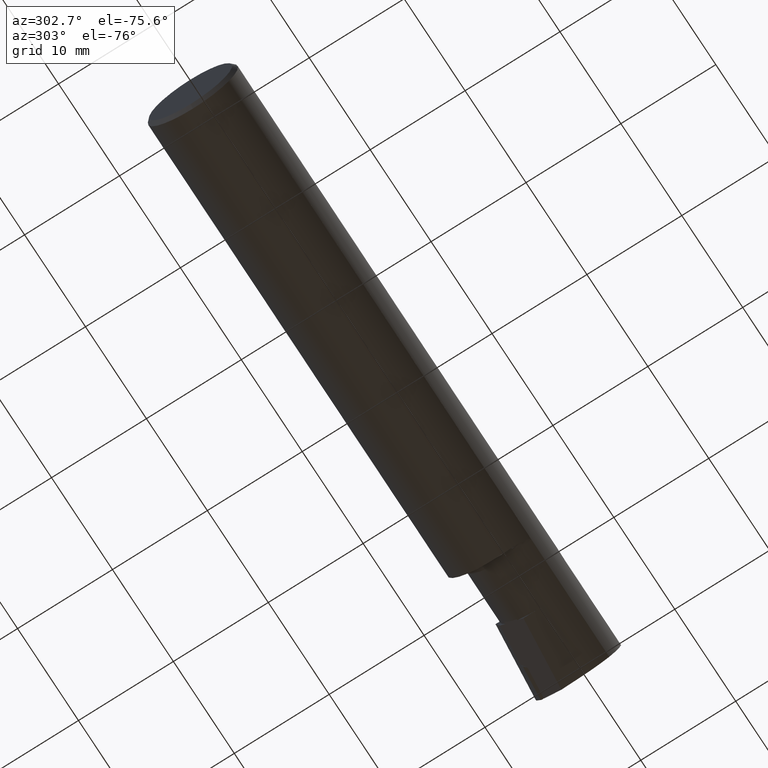
[diagram: clean part render]
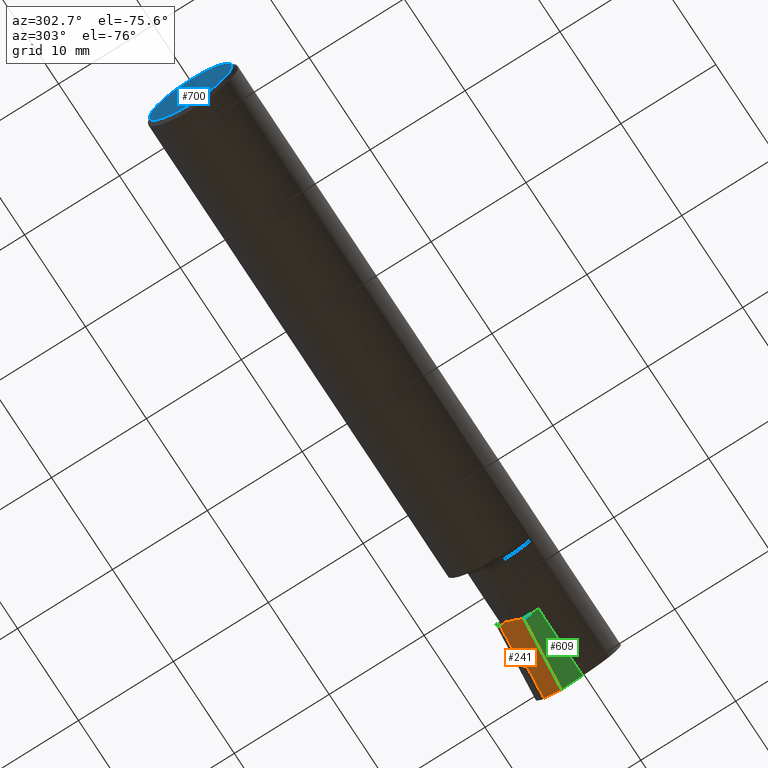
[diagram: same view with three faces highlighted in distinct colors, each labeled with its STEP entity id]
A machine part, auxiliary view with three faces highlighted in distinct colors.
Their STEP definitions:

[orange] entity #241 — the highlighted planar face has unit normal (0.0689, -0.716, 0.6947).
#9 = VECTOR ( 'NONE', #661, 39.37007874015748143 ) ;
#49 = CARTESIAN_POINT ( 'NONE',  ( 2.181492101905350367, 0.1027992905645485899, -0.07900000000000000078 ) ) ;
#51 = VERTEX_POINT ( 'NONE', #894 ) ;
#64 = VERTEX_POINT ( 'NONE', #1113 ) ;
#69 = VECTOR ( 'NONE', #915, 39.37007874015748854 ) ;
#79 = EDGE_CURVE ( 'NONE', #334, #429, #335, .T. ) ;
#81 = DIRECTION ( 'NONE',  ( 0.000000000000000000, 0.6963153109074987634, 0.7177360153954887023 ) ) ;
#87 = CARTESIAN_POINT ( 'NONE',  ( 2.464961778531886250, -0.04354375554968627909, -0.2579796886342063389 ) ) ;
#104 = CARTESIAN_POINT ( 'NONE',  ( 2.489993752604012567, 0.1325046208776947954, -0.07899999999999998690 ) ) ;
#110 = DIRECTION ( 'NONE',  ( 0.9953961983671780756, 0.09584575252023219694, -0.000000000000000000 ) ) ;
#112 =( BOUNDED_CURVE ( )  B_SPLINE_CURVE ( 3, ( #1071, #481, #981, #210 ),
 .UNSPECIFIED., .F., .T. ) 
 B_SPLINE_CURVE_WITH_KNOTS ( ( 4, 4 ),
 ( 2.906964023925625806, 2.922841759402729611 ),
 .UNSPECIFIED. ) 
 CURVE ( )  GEOMETRIC_REPRESENTATION_ITEM ( )  RATIONAL_B_SPLINE_CURVE ( ( 1.000000000000000000, 0.9999789915700160181, 0.9999789915700160181, 1.000000000000000000 ) ) 
 REPRESENTATION_ITEM ( '' )  );
#139 = ORIENTED_EDGE ( 'NONE', *, *, #452, .F. ) ;
#165 = CARTESIAN_POINT ( 'NONE',  ( 2.189999999999999947, 0.02503593865392249318, -0.1600000000000000033 ) ) ;
#210 = CARTESIAN_POINT ( 'NONE',  ( 2.189999999999999947, 0.09892832815658940404, -0.08383446352691081849 ) ) ;
#241 = ADVANCED_FACE ( 'NONE', ( #1040 ), #537, .F. ) ;
#249 = ORIENTED_EDGE ( 'NONE', *, *, #669, .F. ) ;
#251 = CARTESIAN_POINT ( 'NONE',  ( 2.458217987216988032, 0.02743201278301088744, -0.1841511679058638051 ) ) ;
#253 = EDGE_CURVE ( 'NONE', #896, #51, #939, .T. ) ;
#260 = DIRECTION ( 'NONE',  ( 0.000000000000000000, -0.6963153109074987634, -0.7177360153954887023 ) ) ;
#287 = CARTESIAN_POINT ( 'NONE',  ( 2.347923612504149826, 0.1377263874958503387, -0.05951696714321080134 ) ) ;
#290 = CARTESIAN_POINT ( 'NONE',  ( 2.181738322109779915, 0.1002421959724121570, -0.08166019597998362689 ) ) ;
#292 = EDGE_CURVE ( 'NONE', #51, #722, #950, .T. ) ;
#334 = VERTEX_POINT ( 'NONE', #104 ) ;
#335 = LINE ( 'NONE', #49, #629 ) ;
#377 = VECTOR ( 'NONE', #1125, 39.37007874015748143 ) ;
#382 = CARTESIAN_POINT ( 'NONE',  ( 2.186606679638320117, 0.04968236991043955414, -0.1342585810582415107 ) ) ;
#406 = ORIENTED_EDGE ( 'NONE', *, *, #79, .F. ) ;
#408 = CARTESIAN_POINT ( 'NONE',  ( 2.478665149256253919, 0.05283123112360996881, -0.1600000000000000033 ) ) ;
#419 = ORIENTED_EDGE ( 'NONE', *, *, #292, .T. ) ;
#424 = ORIENTED_EDGE ( 'NONE', *, *, #996, .T. ) ;
#429 = VERTEX_POINT ( 'NONE', #1166 ) ;
#452 = EDGE_CURVE ( 'NONE', #693, #64, #597, .T. ) ;
#469 = EDGE_CURVE ( 'NONE', #1212, #334, #646, .T. ) ;
#481 = CARTESIAN_POINT ( 'NONE',  ( 2.184586972752177836, 0.09980999843555199424, -0.08238842112660252348 ) ) ;
#487 = VECTOR ( 'NONE', #81, 39.37007874015748854 ) ;
#495 = EDGE_CURVE ( 'NONE', #693, #429, #927, .T. ) ;
#527 = VECTOR ( 'NONE', #110, 39.37007874015748143 ) ;
#537 = PLANE ( 'NONE',  #573 ) ;
#550 = CARTESIAN_POINT ( 'NONE',  ( 2.189999999999999947, 0.05057386360349683252, -0.1336764534577189190 ) ) ;
#553 = VECTOR ( 'NONE', #1174, 39.37007874015748854 ) ;
#558 = CARTESIAN_POINT ( 'NONE',  ( 2.201451034893686209, -0.1044821538151686213, -0.2946389782215263486 ) ) ;
#573 = AXIS2_PLACEMENT_3D ( 'NONE', #558, #834, #260 ) ;
#574 = CARTESIAN_POINT ( 'NONE',  ( 2.201451034893686209, -0.1044821538151686213, -0.2946389782215263486 ) ) ;
#597 = LINE ( 'NONE', #690, #610 ) ;
#610 = VECTOR ( 'NONE', #1079, 39.37007874015748143 ) ;
#629 = VECTOR ( 'NONE', #720, 39.37007874015748143 ) ;
#646 = LINE ( 'NONE', #87, #69 ) ;
#655 = LINE ( 'NONE', #574, #9 ) ;
#661 = DIRECTION ( 'NONE',  ( -0.06658005426111553160, 0.6914603011188269477, 0.7193398003386494155 ) ) ;
#663 = CARTESIAN_POINT ( 'NONE',  ( 2.186606679638320117, 0.04968236991043955414, -0.1342585810582415107 ) ) ;
#669 = EDGE_CURVE ( 'NONE', #896, #1212, #966, .T. ) ;
#681 = CARTESIAN_POINT ( 'NONE',  ( 2.187754451544411616, 0.04998017955827684794, -0.1340655276293346021 ) ) ;
#682 = EDGE_CURVE ( 'NONE', #985, #685, #112, .T. ) ;
#685 = VERTEX_POINT ( 'NONE', #1181 ) ;
#690 = CARTESIAN_POINT ( 'NONE',  ( 2.181868357711711948, 0.1217370850636853991, -0.05951696714321080134 ) ) ;
#693 = VERTEX_POINT ( 'NONE', #287 ) ;
#702 = ORIENTED_EDGE ( 'NONE', *, *, #719, .T. ) ;
#719 = EDGE_CURVE ( 'NONE', #685, #64, #1164, .T. ) ;
#720 = DIRECTION ( 'NONE',  ( -0.9953961983671780756, -0.09584575252023219694, 0.000000000000000000 ) ) ;
#722 = VERTEX_POINT ( 'NONE', #663 ) ;
#773 = CARTESIAN_POINT ( 'NONE',  ( 2.491200314294299112, 0.05403823023412254040, -0.1600000000000000033 ) ) ;
#777 = ORIENTED_EDGE ( 'NONE', *, *, #469, .F. ) ;
#783 = ORIENTED_EDGE ( 'NONE', *, *, #495, .T. ) ;
#834 = DIRECTION ( 'NONE',  ( 0.06894566448121144941, -0.7160281025912966779, 0.6946583704589989194 ) ) ;
#839 = ORIENTED_EDGE ( 'NONE', *, *, #682, .T. ) ;
#877 = CARTESIAN_POINT ( 'NONE',  ( 2.189999999999999947, 0.1523278978327161637, -0.02879216621877579360 ) ) ;
#894 = CARTESIAN_POINT ( 'NONE',  ( 2.189999999999999947, 0.05057386360349683252, -0.1336764534577189190 ) ) ;
#896 = VERTEX_POINT ( 'NONE', #165 ) ;
#915 = DIRECTION ( 'NONE',  ( 0.09921662170354424160, 0.6977845660589906407, 0.7094031021553272032 ) ) ;
#927 = LINE ( 'NONE', #251, #377 ) ;
#939 = LINE ( 'NONE', #1127, #487 ) ;
#950 =( BOUNDED_CURVE ( )  B_SPLINE_CURVE ( 3, ( #550, #982, #681, #382 ),
 .UNSPECIFIED., .F., .T. ) 
 B_SPLINE_CURVE_WITH_KNOTS ( ( 4, 4 ),
 ( 3.360343547776857953, 3.366998074347832492 ),
 .UNSPECIFIED. ) 
 CURVE ( )  GEOMETRIC_REPRESENTATION_ITEM ( )  RATIONAL_B_SPLINE_CURVE ( ( 1.000000000000000000, 0.9999963097764139608, 0.9999963097764139608, 1.000000000000000000 ) ) 
 REPRESENTATION_ITEM ( '' )  );
#963 = EDGE_LOOP ( 'NONE', ( #139, #783, #406, #777, #249, #980, #419, #424, #839, #702 ) ) ;
#966 = LINE ( 'NONE', #773, #527 ) ;
#980 = ORIENTED_EDGE ( 'NONE', *, *, #253, .T. ) ;
#981 = CARTESIAN_POINT ( 'NONE',  ( 2.187340923238427770, 0.09937203329598440216, -0.08311319220188072288 ) ) ;
#982 = CARTESIAN_POINT ( 'NONE',  ( 2.188885562505690441, 0.05027734521923696992, -0.1338714843797640663 ) ) ;
#985 = VERTEX_POINT ( 'NONE', #290 ) ;
#996 = EDGE_CURVE ( 'NONE', #722, #985, #655, .T. ) ;
#1040 = FACE_OUTER_BOUND ( 'NONE', #963, .T. ) ;
#1071 = CARTESIAN_POINT ( 'NONE',  ( 2.181738322109779915, 0.1002421959724121570, -0.08166019597998362689 ) ) ;
#1079 = DIRECTION ( 'NONE',  ( -0.9953961983671780756, -0.09584575252023197489, 2.447603062721989417E-16 ) ) ;
#1113 = CARTESIAN_POINT ( 'NONE',  ( 2.189999999999999947, 0.1225200731599075943, -0.05951696714321078746 ) ) ;
#1125 = DIRECTION ( 'NONE',  ( 0.5524160538717103330, -0.5524160538717157731, -0.6242379408924206841 ) ) ;
#1127 = CARTESIAN_POINT ( 'NONE',  ( 2.189999999999999947, 0.1523278978327161637, -0.02879216621877579360 ) ) ;
#1164 = LINE ( 'NONE', #877, #553 ) ;
#1166 = CARTESIAN_POINT ( 'NONE',  ( 2.365165019062702711, 0.1204849809372969260, -0.07900000000000000078 ) ) ;
#1174 = DIRECTION ( 'NONE',  ( 0.000000000000000000, 0.6963153109074987634, 0.7177360153954887023 ) ) ;
#1181 = CARTESIAN_POINT ( 'NONE',  ( 2.189999999999999947, 0.09892832815658940404, -0.08383446352691081849 ) ) ;
#1212 = VERTEX_POINT ( 'NONE', #408 ) ;

[blue] entity #700 — the highlighted planar face has unit normal (1, 0, 0).
#2 = CARTESIAN_POINT ( 'NONE',  ( 0.000000000000000000, 0.000000000000000000, 0.000000000000000000 ) ) ;
#65 = CARTESIAN_POINT ( 'NONE',  ( 0.000000000000000000, 0.000000000000000000, 0.000000000000000000 ) ) ;
#93 = EDGE_CURVE ( 'NONE', #943, #99, #871, .T. ) ;
#94 = FACE_OUTER_BOUND ( 'NONE', #513, .T. ) ;
#99 = VERTEX_POINT ( 'NONE', #626 ) ;
#183 = DIRECTION ( 'NONE',  ( 0.000000000000000000, 0.000000000000000000, -1.000000000000000000 ) ) ;
#217 = DIRECTION ( 'NONE',  ( 1.000000000000000000, 0.000000000000000000, 0.000000000000000000 ) ) ;
#229 = EDGE_CURVE ( 'NONE', #99, #943, #410, .T. ) ;
#242 = CARTESIAN_POINT ( 'NONE',  ( 0.000000000000000000, 0.000000000000000000, 0.000000000000000000 ) ) ;
#248 = ORIENTED_EDGE ( 'NONE', *, *, #93, .T. ) ;
#410 = CIRCLE ( 'NONE', #1205, 0.1723500000000004195 ) ;
#473 = AXIS2_PLACEMENT_3D ( 'NONE', #2, #217, #484 ) ;
#484 = DIRECTION ( 'NONE',  ( 0.000000000000000000, 0.000000000000000000, -1.000000000000000000 ) ) ;
#511 = DIRECTION ( 'NONE',  ( 0.000000000000000000, 0.000000000000000000, -1.000000000000000000 ) ) ;
#513 = EDGE_LOOP ( 'NONE', ( #1017, #248 ) ) ;
#626 = CARTESIAN_POINT ( 'NONE',  ( 0.000000000000000000, 0.000000000000000000, -0.1723500000000004195 ) ) ;
#652 = DIRECTION ( 'NONE',  ( -1.000000000000000000, -0.000000000000000000, -0.000000000000000000 ) ) ;
#672 = AXIS2_PLACEMENT_3D ( 'NONE', #242, #1008, #511 ) ;
#700 = ADVANCED_FACE ( 'NONE', ( #94 ), #1155, .F. ) ;
#871 = CIRCLE ( 'NONE', #672, 0.1723500000000004195 ) ;
#943 = VERTEX_POINT ( 'NONE', #1020 ) ;
#1008 = DIRECTION ( 'NONE',  ( -1.000000000000000000, -0.000000000000000000, -0.000000000000000000 ) ) ;
#1017 = ORIENTED_EDGE ( 'NONE', *, *, #229, .T. ) ;
#1020 = CARTESIAN_POINT ( 'NONE',  ( 0.000000000000000000, 2.202527268266516892E-17, 0.1723500000000004195 ) ) ;
#1155 = PLANE ( 'NONE',  #473 ) ;
#1205 = AXIS2_PLACEMENT_3D ( 'NONE', #65, #652, #183 ) ;

[green] entity #609 — the highlighted planar face has unit normal (0, 0, 1).
#15 = EDGE_LOOP ( 'NONE', ( #123, #715, #41, #971 ) ) ;
#29 = AXIS2_PLACEMENT_3D ( 'NONE', #359, #1027, #548 ) ;
#41 = ORIENTED_EDGE ( 'NONE', *, *, #1110, .F. ) ;
#110 = DIRECTION ( 'NONE',  ( 0.9953961983671780756, 0.09584575252023219694, -0.000000000000000000 ) ) ;
#123 = ORIENTED_EDGE ( 'NONE', *, *, #539, .T. ) ;
#165 = CARTESIAN_POINT ( 'NONE',  ( 2.189999999999999947, 0.02503593865392249318, -0.1600000000000000033 ) ) ;
#185 = CARTESIAN_POINT ( 'NONE',  ( 2.481746091699616130, 0.1697313636084475386, -0.1600000000000000033 ) ) ;
#282 = DIRECTION ( 'NONE',  ( 0.000000000000000000, 1.000000000000000000, 0.000000000000000000 ) ) ;
#355 = VECTOR ( 'NONE', #583, 39.37007874015748143 ) ;
#359 = CARTESIAN_POINT ( 'NONE',  ( 2.500000000000001332, -0.03734999999999999432, -0.1600000000000000033 ) ) ;
#408 = CARTESIAN_POINT ( 'NONE',  ( 2.478665149256253919, 0.05283123112360996881, -0.1600000000000000033 ) ) ;
#443 = PLANE ( 'NONE',  #29 ) ;
#466 = CARTESIAN_POINT ( 'NONE',  ( 2.476288392475423983, -0.03734999999999997350, -0.1600000000000000033 ) ) ;
#471 = DIRECTION ( 'NONE',  ( 0.02634618898897572378, 0.9996528789163552364, -0.000000000000000000 ) ) ;
#527 = VECTOR ( 'NONE', #110, 39.37007874015748143 ) ;
#539 = EDGE_CURVE ( 'NONE', #1077, #896, #1249, .T. ) ;
#548 = DIRECTION ( 'NONE',  ( 1.000000000000000000, 0.000000000000000000, -0.000000000000000000 ) ) ;
#561 = CARTESIAN_POINT ( 'NONE',  ( 2.189999999999999947, -0.03734999999999997350, -0.1600000000000000033 ) ) ;
#583 = DIRECTION ( 'NONE',  ( -1.000000000000000000, -0.000000000000000000, -0.000000000000000000 ) ) ;
#598 = VERTEX_POINT ( 'NONE', #466 ) ;
#609 = ADVANCED_FACE ( 'NONE', ( #844 ), #443, .F. ) ;
#639 = CARTESIAN_POINT ( 'NONE',  ( 2.189999999999999947, -0.03734999999999999432, -0.1600000000000000033 ) ) ;
#645 = EDGE_CURVE ( 'NONE', #598, #1077, #680, .T. ) ;
#669 = EDGE_CURVE ( 'NONE', #896, #1212, #966, .T. ) ;
#680 = LINE ( 'NONE', #1078, #355 ) ;
#715 = ORIENTED_EDGE ( 'NONE', *, *, #669, .T. ) ;
#773 = CARTESIAN_POINT ( 'NONE',  ( 2.491200314294299112, 0.05403823023412254040, -0.1600000000000000033 ) ) ;
#844 = FACE_OUTER_BOUND ( 'NONE', #15, .T. ) ;
#896 = VERTEX_POINT ( 'NONE', #165 ) ;
#966 = LINE ( 'NONE', #773, #527 ) ;
#971 = ORIENTED_EDGE ( 'NONE', *, *, #645, .T. ) ;
#1027 = DIRECTION ( 'NONE',  ( 0.000000000000000000, 0.000000000000000000, 1.000000000000000000 ) ) ;
#1047 = LINE ( 'NONE', #185, #1167 ) ;
#1077 = VERTEX_POINT ( 'NONE', #561 ) ;
#1078 = CARTESIAN_POINT ( 'NONE',  ( 2.500000000000001332, -0.03734999999999997350, -0.1600000000000000033 ) ) ;
#1102 = VECTOR ( 'NONE', #282, 39.37007874015748143 ) ;
#1110 = EDGE_CURVE ( 'NONE', #598, #1212, #1047, .T. ) ;
#1167 = VECTOR ( 'NONE', #471, 39.37007874015748143 ) ;
#1212 = VERTEX_POINT ( 'NONE', #408 ) ;
#1249 = LINE ( 'NONE', #639, #1102 ) ;